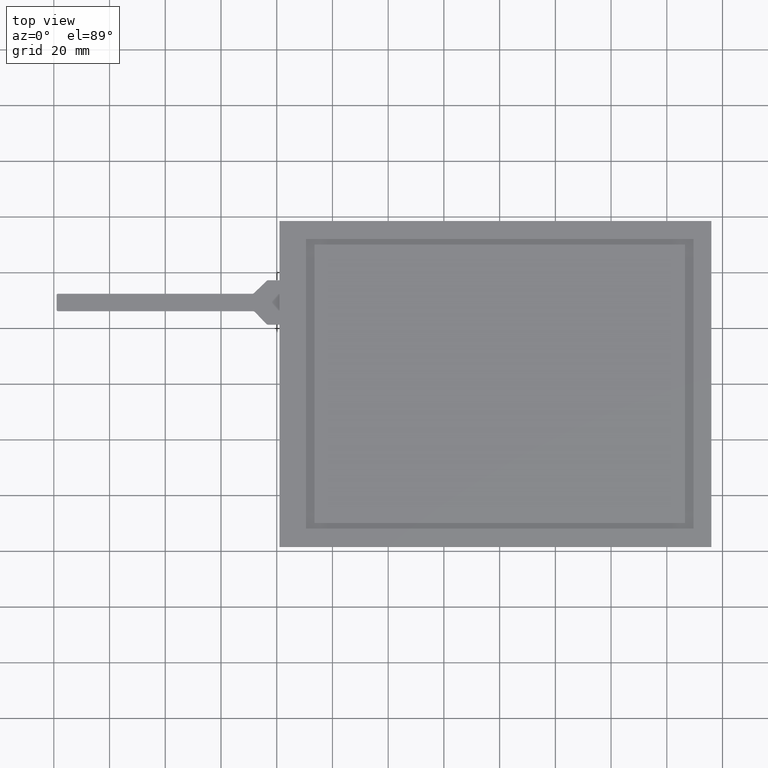
[diagram: clean part render]
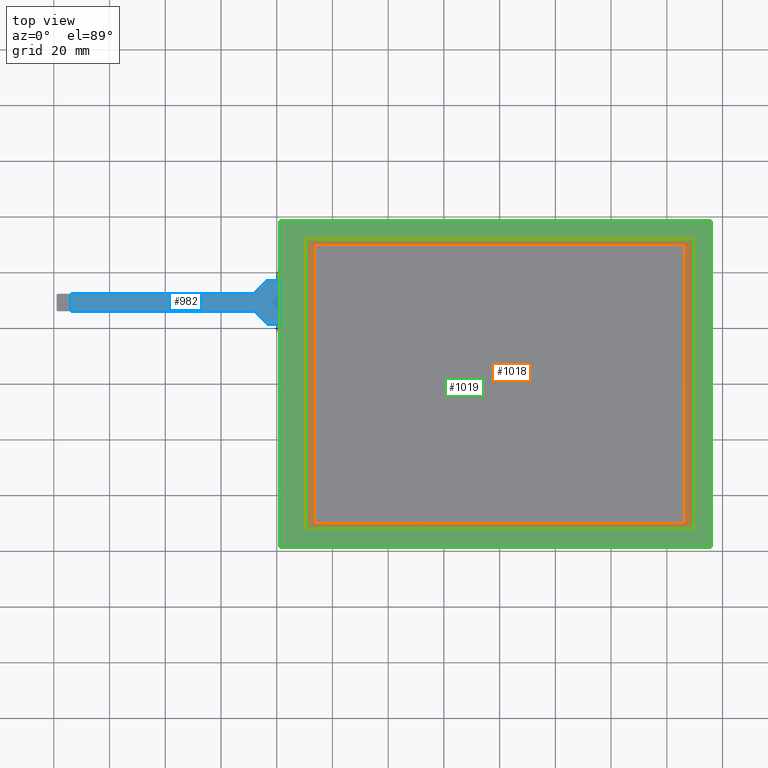
[diagram: same view with three faces highlighted in distinct colors, each labeled with its STEP entity id]
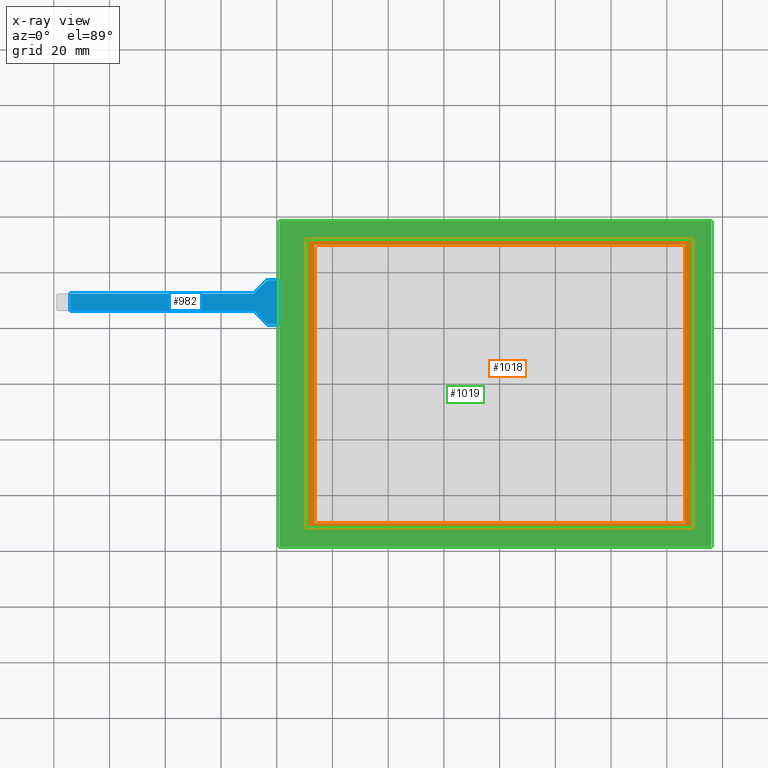
[diagram: x-ray of the same camera — body ghosted, the three highlighted faces saturated]
A machine part, top view with three faces highlighted in distinct colors.
The next image is the same camera in x-ray (body ghosted, the three faces saturated) — at least one of them is partly hidden behind the body in this view.
Their STEP definitions:

[orange] entity #1018 — the highlighted planar face has unit normal (0, 0, -1).
#46=FACE_BOUND('',#189,.T.);
#86=PLANE('',#1101);
#137=FACE_OUTER_BOUND('',#188,.T.);
#188=EDGE_LOOP('',(#925,#926,#927,#928));
#189=EDGE_LOOP('',(#929,#930,#931,#932));
#291=LINE('',#1576,#417);
#295=LINE('',#1583,#421);
#298=LINE('',#1589,#424);
#300=LINE('',#1592,#426);
#303=LINE('',#1600,#429);
#307=LINE('',#1607,#433);
#310=LINE('',#1613,#436);
#312=LINE('',#1616,#438);
#417=VECTOR('',#1299,10.);
#421=VECTOR('',#1305,10.);
#424=VECTOR('',#1310,10.);
#426=VECTOR('',#1314,10.);
#429=VECTOR('',#1319,10.);
#433=VECTOR('',#1325,10.);
#436=VECTOR('',#1330,10.);
#438=VECTOR('',#1334,10.);
#533=VERTEX_POINT('',#1573);
#534=VERTEX_POINT('',#1575);
#536=VERTEX_POINT('',#1581);
#538=VERTEX_POINT('',#1587);
#541=VERTEX_POINT('',#1597);
#542=VERTEX_POINT('',#1599);
#544=VERTEX_POINT('',#1605);
#546=VERTEX_POINT('',#1611);
#659=EDGE_CURVE('',#533,#534,#291,.T.);
#663=EDGE_CURVE('',#536,#533,#295,.T.);
#666=EDGE_CURVE('',#538,#536,#298,.T.);
#668=EDGE_CURVE('',#534,#538,#300,.T.);
#671=EDGE_CURVE('',#541,#542,#303,.T.);
#675=EDGE_CURVE('',#544,#541,#307,.T.);
#678=EDGE_CURVE('',#546,#544,#310,.T.);
#680=EDGE_CURVE('',#542,#546,#312,.T.);
#925=ORIENTED_EDGE('',*,*,#680,.F.);
#926=ORIENTED_EDGE('',*,*,#671,.F.);
#927=ORIENTED_EDGE('',*,*,#675,.F.);
#928=ORIENTED_EDGE('',*,*,#678,.F.);
#929=ORIENTED_EDGE('',*,*,#668,.F.);
#930=ORIENTED_EDGE('',*,*,#659,.F.);
#931=ORIENTED_EDGE('',*,*,#663,.F.);
#932=ORIENTED_EDGE('',*,*,#666,.F.);
#1018=ADVANCED_FACE('',(#137,#46),#86,.F.);
#1101=AXIS2_PLACEMENT_3D('',#1617,#1335,#1336);
#1299=DIRECTION('',(1.,0.,0.));
#1305=DIRECTION('',(0.,-1.,0.));
#1310=DIRECTION('',(-1.,0.,0.));
#1314=DIRECTION('',(0.,1.,0.));
#1319=DIRECTION('',(-1.70803542250024E-16,1.,0.));
#1325=DIRECTION('',(-1.,-1.2779545607196E-16,0.));
#1330=DIRECTION('',(8.5401771125012E-17,-1.,0.));
#1334=DIRECTION('',(1.,0.,0.));
#1335=DIRECTION('center_axis',(0.,0.,-1.));
#1336=DIRECTION('ref_axis',(-1.,0.,0.));
#1573=CARTESIAN_POINT('',(-66.5,-50.,-0.1));
#1575=CARTESIAN_POINT('',(66.5,-50.,-0.1));
#1576=CARTESIAN_POINT('',(66.5,-50.,-0.1));
#1581=CARTESIAN_POINT('',(-66.5,50.,-0.1));
#1583=CARTESIAN_POINT('',(-66.5,-50.,-0.1));
#1587=CARTESIAN_POINT('',(66.5,50.,-0.1));
#1589=CARTESIAN_POINT('',(-66.5,50.,-0.1));
#1592=CARTESIAN_POINT('',(66.5,50.,-0.1));
#1597=CARTESIAN_POINT('',(-69.5,-52.,-0.1));
#1599=CARTESIAN_POINT('',(-69.5,52.,-0.1));
#1600=CARTESIAN_POINT('',(-69.5,52.,-0.1));
#1605=CARTESIAN_POINT('',(69.5,-52.,-0.1));
#1607=CARTESIAN_POINT('',(-69.5,-52.,-0.1));
#1611=CARTESIAN_POINT('',(69.5,52.,-0.1));
#1613=CARTESIAN_POINT('',(69.5,-52.,-0.1));
#1616=CARTESIAN_POINT('',(69.5,52.,-0.1));
#1617=CARTESIAN_POINT('Origin',(-8.88178419700125E-15,8.88178419700125E-15,
-0.1));

[blue] entity #982 — the highlighted planar face has unit normal (0, 0, 1).
#53=PLANE('',#1059);
#101=FACE_OUTER_BOUND('',#152,.T.);
#152=EDGE_LOOP('',(#744,#745,#746,#747,#748,#749,#750,#751,#752,#753,#754,
#755));
#230=LINE('',#1437,#356);
#234=LINE('',#1450,#360);
#235=LINE('',#1454,#361);
#236=LINE('',#1455,#362);
#237=LINE('',#1459,#363);
#238=LINE('',#1463,#364);
#239=LINE('',#1465,#365);
#240=LINE('',#1466,#366);
#356=VECTOR('',#1162,10.);
#360=VECTOR('',#1174,10.);
#361=VECTOR('',#1177,10.);
#362=VECTOR('',#1178,10.);
#363=VECTOR('',#1181,10.);
#364=VECTOR('',#1184,10.);
#365=VECTOR('',#1185,10.);
#366=VECTOR('',#1186,10.);
#456=CIRCLE('',#1058,1.);
#457=CIRCLE('',#1060,1.);
#458=CIRCLE('',#1061,1.);
#459=CIRCLE('',#1062,1.);
#493=VERTEX_POINT('',#1434);
#494=VERTEX_POINT('',#1436);
#497=VERTEX_POINT('',#1443);
#498=VERTEX_POINT('',#1445);
#499=VERTEX_POINT('',#1449);
#500=VERTEX_POINT('',#1451);
#501=VERTEX_POINT('',#1453);
#502=VERTEX_POINT('',#1456);
#503=VERTEX_POINT('',#1458);
#504=VERTEX_POINT('',#1460);
#505=VERTEX_POINT('',#1462);
#506=VERTEX_POINT('',#1464);
#590=EDGE_CURVE('',#494,#493,#230,.T.);
#594=EDGE_CURVE('',#497,#498,#456,.T.);
#596=EDGE_CURVE('',#497,#499,#234,.T.);
#597=EDGE_CURVE('',#500,#499,#457,.T.);
#598=EDGE_CURVE('',#500,#501,#235,.T.);
#599=EDGE_CURVE('',#501,#494,#236,.T.);
#600=EDGE_CURVE('',#502,#493,#458,.T.);
#601=EDGE_CURVE('',#502,#503,#237,.T.);
#602=EDGE_CURVE('',#504,#503,#459,.T.);
#603=EDGE_CURVE('',#504,#505,#238,.T.);
#604=EDGE_CURVE('',#506,#505,#239,.T.);
#605=EDGE_CURVE('',#506,#498,#240,.T.);
#744=ORIENTED_EDGE('',*,*,#594,.F.);
#745=ORIENTED_EDGE('',*,*,#596,.T.);
#746=ORIENTED_EDGE('',*,*,#597,.F.);
#747=ORIENTED_EDGE('',*,*,#598,.T.);
#748=ORIENTED_EDGE('',*,*,#599,.T.);
#749=ORIENTED_EDGE('',*,*,#590,.T.);
#750=ORIENTED_EDGE('',*,*,#600,.F.);
#751=ORIENTED_EDGE('',*,*,#601,.T.);
#752=ORIENTED_EDGE('',*,*,#602,.F.);
#753=ORIENTED_EDGE('',*,*,#603,.T.);
#754=ORIENTED_EDGE('',*,*,#604,.F.);
#755=ORIENTED_EDGE('',*,*,#605,.T.);
#982=ADVANCED_FACE('',(#101),#53,.T.);
#1058=AXIS2_PLACEMENT_3D('',#1446,#1169,#1170);
#1059=AXIS2_PLACEMENT_3D('',#1448,#1172,#1173);
#1060=AXIS2_PLACEMENT_3D('',#1452,#1175,#1176);
#1061=AXIS2_PLACEMENT_3D('',#1457,#1179,#1180);
#1062=AXIS2_PLACEMENT_3D('',#1461,#1182,#1183);
#1162=DIRECTION('',(1.,1.87997180435454E-16,0.));
#1169=DIRECTION('center_axis',(0.,0.,-1.));
#1170=DIRECTION('ref_axis',(-0.376366215351622,0.926470977387795,0.));
#1172=DIRECTION('center_axis',(0.,0.,1.));
#1173=DIRECTION('ref_axis',(1.,0.,0.));
#1174=DIRECTION('',(-0.716696943883792,-0.697384750785126,0.));
#1175=DIRECTION('center_axis',(0.,0.,1.));
#1176=DIRECTION('ref_axis',(0.376366215351622,-0.926470977387795,0.));
#1177=DIRECTION('',(-1.,-1.25804308739395E-16,0.));
#1178=DIRECTION('',(0.,-1.,0.));
#1179=DIRECTION('center_axis',(0.,0.,1.));
#1180=DIRECTION('ref_axis',(0.388982807598789,0.921245013768087,0.));
#1181=DIRECTION('',(0.697384750785128,-0.71669694388379,0.));
#1182=DIRECTION('center_axis',(0.,0.,-1.));
#1183=DIRECTION('ref_axis',(-0.388982807598792,-0.921245013768086,0.));
#1184=DIRECTION('',(1.,-1.01159273314365E-15,0.));
#1185=DIRECTION('',(3.03650741777821E-16,-1.,0.));
#1186=DIRECTION('',(-1.,3.03477819943095E-15,0.));
#1434=CARTESIAN_POINT('',(-88.5558737223424,26.125,-0.2));
#1436=CARTESIAN_POINT('',(-154.,26.125,-0.2));
#1437=CARTESIAN_POINT('',(-159.,26.125,-0.2));
#1443=CARTESIAN_POINT('',(-83.6811483715164,36.9666969438838,-0.2));
#1445=CARTESIAN_POINT('',(-82.9837636207313,37.25,-0.2));
#1446=CARTESIAN_POINT('Origin',(-82.9837636207313,36.25,-0.2));
#1448=CARTESIAN_POINT('Origin',(-119.,29.25,-0.2));
#1449=CARTESIAN_POINT('',(-88.1088516284837,32.6583030561162,-0.2));
#1450=CARTESIAN_POINT('',(-83.39,37.25,-0.2));
#1451=CARTESIAN_POINT('',(-88.8062363792688,32.375,-0.2));
#1452=CARTESIAN_POINT('Origin',(-88.8062363792688,33.375,-0.2));
#1453=CARTESIAN_POINT('',(-154.,32.375,-0.2));
#1454=CARTESIAN_POINT('',(-88.4,32.375,-0.2));
#1455=CARTESIAN_POINT('',(-154.,30.8125,-0.2));
#1456=CARTESIAN_POINT('',(-87.8391767784586,25.8223847507852,-0.2));
#1457=CARTESIAN_POINT('Origin',(-88.5558737223424,25.125,-0.2));
#1458=CARTESIAN_POINT('',(-83.6844609460923,21.5526152492149,-0.2));
#1459=CARTESIAN_POINT('',(-88.1336377245509,26.125,-0.2));
#1460=CARTESIAN_POINT('',(-82.9677640022086,21.25,-0.2));
#1461=CARTESIAN_POINT('Origin',(-82.9677640022086,22.25,-0.2));
#1462=CARTESIAN_POINT('',(-79.,21.25,-0.2));
#1463=CARTESIAN_POINT('',(-83.39,21.25,-0.2));
#1464=CARTESIAN_POINT('',(-79.,37.25,-0.2));
#1465=CARTESIAN_POINT('',(-79.,-14.625,-0.2));
#1466=CARTESIAN_POINT('',(-79.,37.25,-0.2));

[green] entity #1019 — the highlighted planar face has unit normal (0, 0, 1).
#47=FACE_BOUND('',#191,.T.);
#87=PLANE('',#1102);
#138=FACE_OUTER_BOUND('',#190,.T.);
#190=EDGE_LOOP('',(#933,#934,#935,#936));
#191=EDGE_LOOP('',(#937,#938,#939,#940));
#301=LINE('',#1596,#427);
#305=LINE('',#1604,#431);
#308=LINE('',#1610,#434);
#311=LINE('',#1615,#437);
#313=LINE('',#1621,#439);
#314=LINE('',#1623,#440);
#315=LINE('',#1625,#441);
#316=LINE('',#1626,#442);
#427=VECTOR('',#1317,10.);
#431=VECTOR('',#1323,10.);
#434=VECTOR('',#1328,10.);
#437=VECTOR('',#1333,10.);
#439=VECTOR('',#1339,10.);
#440=VECTOR('',#1340,10.);
#441=VECTOR('',#1341,10.);
#442=VECTOR('',#1342,10.);
#539=VERTEX_POINT('',#1594);
#540=VERTEX_POINT('',#1595);
#543=VERTEX_POINT('',#1603);
#545=VERTEX_POINT('',#1609);
#547=VERTEX_POINT('',#1619);
#548=VERTEX_POINT('',#1620);
#549=VERTEX_POINT('',#1622);
#550=VERTEX_POINT('',#1624);
#669=EDGE_CURVE('',#539,#540,#301,.T.);
#673=EDGE_CURVE('',#543,#539,#305,.T.);
#676=EDGE_CURVE('',#545,#543,#308,.T.);
#679=EDGE_CURVE('',#540,#545,#311,.T.);
#681=EDGE_CURVE('',#547,#548,#313,.T.);
#682=EDGE_CURVE('',#548,#549,#314,.T.);
#683=EDGE_CURVE('',#549,#550,#315,.T.);
#684=EDGE_CURVE('',#550,#547,#316,.T.);
#933=ORIENTED_EDGE('',*,*,#681,.T.);
#934=ORIENTED_EDGE('',*,*,#682,.T.);
#935=ORIENTED_EDGE('',*,*,#683,.T.);
#936=ORIENTED_EDGE('',*,*,#684,.T.);
#937=ORIENTED_EDGE('',*,*,#669,.T.);
#938=ORIENTED_EDGE('',*,*,#679,.T.);
#939=ORIENTED_EDGE('',*,*,#676,.T.);
#940=ORIENTED_EDGE('',*,*,#673,.T.);
#1019=ADVANCED_FACE('',(#138,#47),#87,.T.);
#1102=AXIS2_PLACEMENT_3D('',#1618,#1337,#1338);
#1317=DIRECTION('',(-1.70803542250024E-16,1.,0.));
#1323=DIRECTION('',(-1.,-1.2779545607196E-16,0.));
#1328=DIRECTION('',(8.5401771125012E-17,-1.,0.));
#1333=DIRECTION('',(1.,0.,0.));
#1337=DIRECTION('center_axis',(0.,0.,1.));
#1338=DIRECTION('ref_axis',(1.,0.,0.));
#1339=DIRECTION('',(-1.,0.,0.));
#1340=DIRECTION('',(3.03650741777821E-16,-1.,0.));
#1341=DIRECTION('',(1.,1.14603667058081E-16,0.));
#1342=DIRECTION('',(-7.59126854444551E-17,1.,0.));
#1594=CARTESIAN_POINT('',(-69.5,-52.,0.));
#1595=CARTESIAN_POINT('',(-69.5,52.,0.));
#1596=CARTESIAN_POINT('',(-69.5,-26.,0.));
#1603=CARTESIAN_POINT('',(69.5,-52.,0.));
#1604=CARTESIAN_POINT('',(34.,-52.,0.));
#1609=CARTESIAN_POINT('',(69.5,52.,0.));
#1610=CARTESIAN_POINT('',(69.5,26.,0.));
#1615=CARTESIAN_POINT('',(-35.5,52.,0.));
#1618=CARTESIAN_POINT('Origin',(-1.50000000000002,8.88178419700125E-15,
0.));
#1619=CARTESIAN_POINT('',(76.,58.5,0.));
#1620=CARTESIAN_POINT('',(-79.,58.5,0.));
#1621=CARTESIAN_POINT('',(76.,58.5,0.));
#1622=CARTESIAN_POINT('',(-79.,-58.5,0.));
#1623=CARTESIAN_POINT('',(-79.,58.5,0.));
#1624=CARTESIAN_POINT('',(76.,-58.5,0.));
#1625=CARTESIAN_POINT('',(-79.,-58.5,0.));
#1626=CARTESIAN_POINT('',(76.,-58.5,0.));